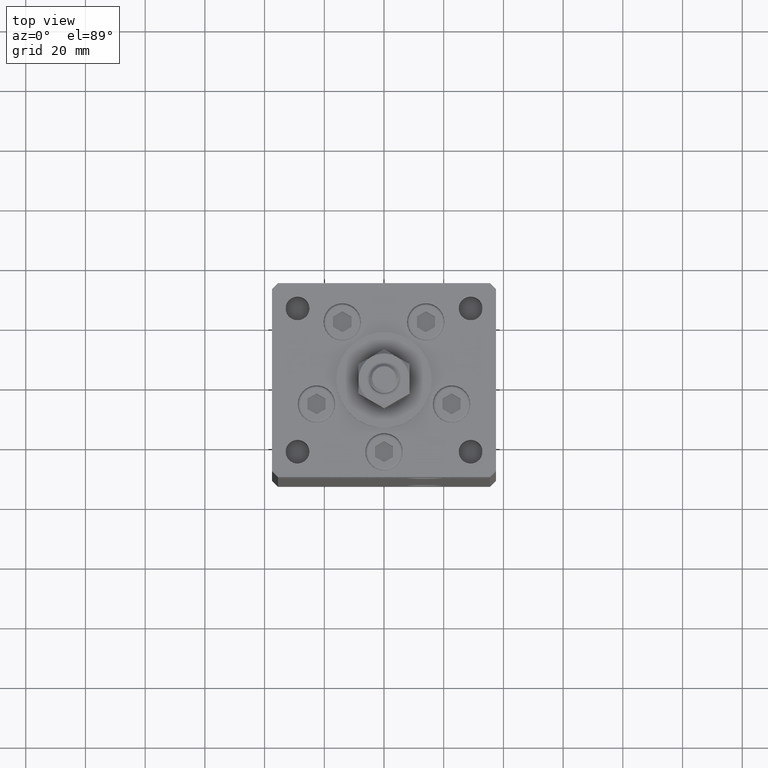
[diagram: clean part render]
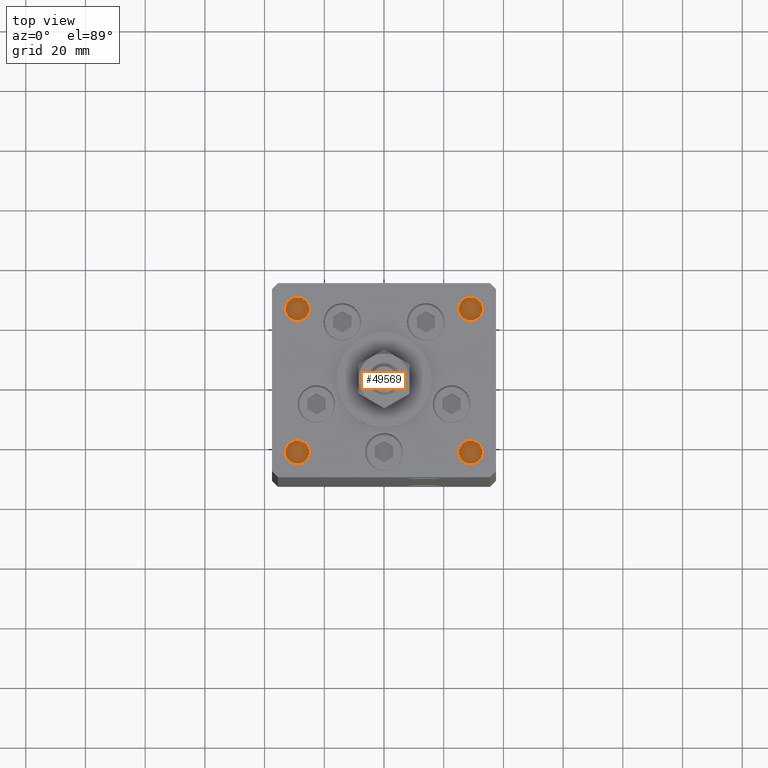
[diagram: same view with one face highlighted and labeled with its STEP entity id]
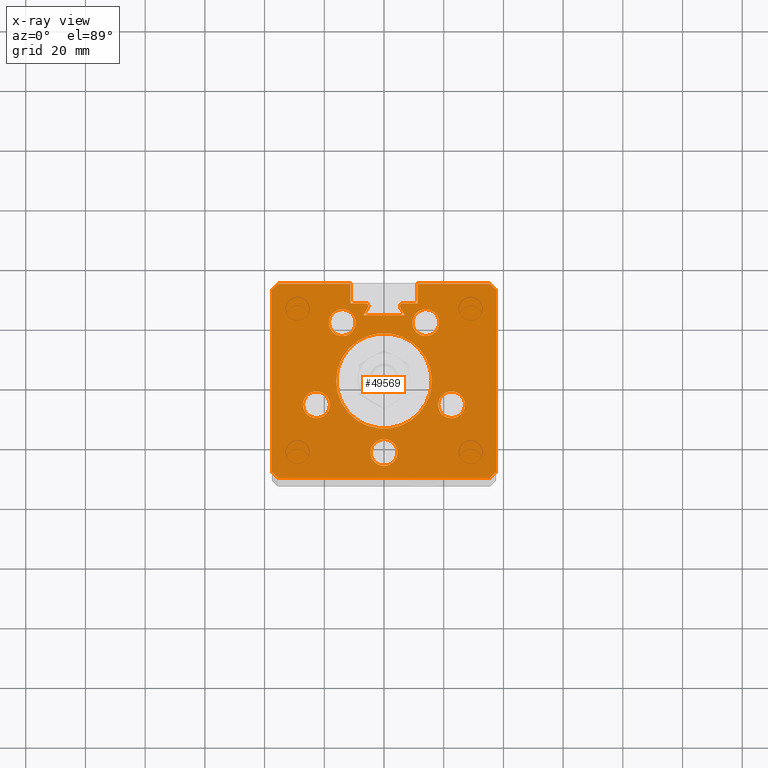
[diagram: x-ray of the same camera — body ghosted, the highlighted face saturated]
A machine part, top view. The second image highlights one B-rep face of the part: STEP entity #49569.
The next image is the same camera in x-ray: the body ghosted, the highlighted face saturated — about 0% of this face is hidden behind the body in this view.
In plain terms, the highlighted planar face has unit normal (0, 0, -1).
Its self-contained STEP definition (entity closure, byte-faithful):
#405 = VERTEX_POINT ( 'NONE', #25577 ) ;
#521 = EDGE_CURVE ( 'NONE', #20227, #28060, #35450, .T. ) ;
#607 = FACE_BOUND ( 'NONE', #19194, .T. ) ;
#1237 = ORIENTED_EDGE ( 'NONE', *, *, #10873, .T. ) ;
#1442 = DIRECTION ( 'NONE',  ( 0.000000000000000000, 0.000000000000000000, 1.000000000000000000 ) ) ;
#1730 = ORIENTED_EDGE ( 'NONE', *, *, #22017, .F. ) ;
#2103 = VERTEX_POINT ( 'NONE', #8087 ) ;
#2187 = EDGE_LOOP ( 'NONE', ( #38121, #13684, #14062, #14306, #53653, #31076, #34525, #52698, #13919, #39289, #41431, #50868, #1237, #29523, #7382, #40038, #49919, #7637, #42418 ) ) ;
#3345 = CARTESIAN_POINT ( 'NONE',  ( 35.50000000000000000, 32.49999999999999289, 156.0000000000000000 ) ) ;
#3605 = ORIENTED_EDGE ( 'NONE', *, *, #34980, .F. ) ;
#3732 = CARTESIAN_POINT ( 'NONE',  ( 6.876153656360466826, 21.99999999999986855, 156.0000000000000000 ) ) ;
#4161 = CARTESIAN_POINT ( 'NONE',  ( 0.000000000000000000, 0.000000000000000000, 156.0000000000000000 ) ) ;
#4205 = DIRECTION ( 'NONE',  ( 1.000000000000000000, 0.000000000000000000, 0.000000000000000000 ) ) ;
#4253 = LINE ( 'NONE', #45576, #10510 ) ;
#4308 = EDGE_CURVE ( 'NONE', #28270, #14749, #42780, .T. ) ;
#4363 = VECTOR ( 'NONE', #9335, 1000.000000000000000 ) ;
#4515 = DIRECTION ( 'NONE',  ( 0.000000000000000000, 1.000000000000000000, 0.000000000000000000 ) ) ;
#4566 = VERTEX_POINT ( 'NONE', #10098 ) ;
#4625 = VERTEX_POINT ( 'NONE', #31559 ) ;
#4676 = EDGE_LOOP ( 'NONE', ( #27812, #42208 ) ) ;
#5438 = VECTOR ( 'NONE', #10046, 1000.000000000000114 ) ;
#5548 = VECTOR ( 'NONE', #15099, 1000.000000000000000 ) ;
#5883 = VERTEX_POINT ( 'NONE', #37848 ) ;
#5970 = CARTESIAN_POINT ( 'NONE',  ( -6.183333333334001480, 25.99999999999999289, 156.0000000000000000 ) ) ;
#6012 = ORIENTED_EDGE ( 'NONE', *, *, #8038, .F. ) ;
#6140 = DIRECTION ( 'NONE',  ( 1.000000000000000000, 0.000000000000000000, 0.000000000000000000 ) ) ;
#6361 = DIRECTION ( 'NONE',  ( 2.275047181608927644E-16, -1.000000000000000000, 0.000000000000000000 ) ) ;
#6410 = DIRECTION ( 'NONE',  ( 0.000000000000000000, 0.000000000000000000, 1.000000000000000000 ) ) ;
#6465 = CIRCLE ( 'NONE', #13414, 4.499999999999997335 ) ;
#6550 = EDGE_CURVE ( 'NONE', #21237, #15702, #15606, .T. ) ;
#6639 = DIRECTION ( 'NONE',  ( -2.275047181608927644E-16, -1.000000000000000000, 0.000000000000000000 ) ) ;
#6687 = CIRCLE ( 'NONE', #13631, 0.9333333333340008142 ) ;
#6856 = EDGE_CURVE ( 'NONE', #28060, #20227, #47800, .T. ) ;
#6929 = CARTESIAN_POINT ( 'NONE',  ( -11.25000000000000178, 32.49999999999999289, 156.0000000000000000 ) ) ;
#7203 = LINE ( 'NONE', #6929, #5548 ) ;
#7331 = VERTEX_POINT ( 'NONE', #52617 ) ;
#7382 = ORIENTED_EDGE ( 'NONE', *, *, #12641, .T. ) ;
#7637 = ORIENTED_EDGE ( 'NONE', *, *, #17140, .F. ) ;
#7780 = CARTESIAN_POINT ( 'NONE',  ( -27.12741699796952233, -8.000000000000000000, 156.0000000000000000 ) ) ;
#7887 = VECTOR ( 'NONE', #53082, 1000.000000000000000 ) ;
#8038 = EDGE_CURVE ( 'NONE', #9038, #23674, #44341, .T. ) ;
#8087 = CARTESIAN_POINT ( 'NONE',  ( -5.375042956467946276, 24.59999999999899245, 156.0000000000000000 ) ) ;
#8333 = DIRECTION ( 'NONE',  ( 1.000000000000000000, 0.000000000000000000, 0.000000000000000000 ) ) ;
#8800 = VECTOR ( 'NONE', #23344, 1000.000000000000114 ) ;
#8837 = DIRECTION ( 'NONE',  ( 0.000000000000000000, 0.000000000000000000, -1.000000000000000000 ) ) ;
#9038 = VERTEX_POINT ( 'NONE', #15810 ) ;
#9196 = DIRECTION ( 'NONE',  ( 1.000000000000000000, 0.000000000000000000, 0.000000000000000000 ) ) ;
#9335 = DIRECTION ( 'NONE',  ( -1.000000000000000000, 0.000000000000000000, 0.000000000000000000 ) ) ;
#9687 = EDGE_CURVE ( 'NONE', #14895, #27698, #31058, .T. ) ;
#9815 = VERTEX_POINT ( 'NONE', #49758 ) ;
#9966 = DIRECTION ( 'NONE',  ( -0.000000000000000000, -1.000000000000000000, 0.000000000000000000 ) ) ;
#10046 = DIRECTION ( 'NONE',  ( 0.7071067811865500152, -0.7071067811865451302, 0.000000000000000000 ) ) ;
#10098 = CARTESIAN_POINT ( 'NONE',  ( 6.183333333334001480, 25.99999999999999289, 156.0000000000000000 ) ) ;
#10301 = VECTOR ( 'NONE', #51677, 1000.000000000000000 ) ;
#10412 = CARTESIAN_POINT ( 'NONE',  ( -37.49999999999999289, -30.50000000000000000, 156.0000000000000000 ) ) ;
#10510 = VECTOR ( 'NONE', #4515, 1000.000000000000000 ) ;
#10747 = CARTESIAN_POINT ( 'NONE',  ( 22.62741699796951877, -8.000000000000000000, 156.0000000000000000 ) ) ;
#10873 = EDGE_CURVE ( 'NONE', #4625, #4566, #30000, .T. ) ;
#10998 = CARTESIAN_POINT ( 'NONE',  ( -14.68339468389911495, 8.477461873366664236, 156.0000000000000000 ) ) ;
#11099 = CARTESIAN_POINT ( 'NONE',  ( 14.68339468389911850, 8.477461873366667788, 156.0000000000000000 ) ) ;
#11217 = EDGE_LOOP ( 'NONE', ( #1730, #3605 ) ) ;
#11259 = CARTESIAN_POINT ( 'NONE',  ( -37.50000000000000711, 30.50000000000000000, 156.0000000000000000 ) ) ;
#11328 = EDGE_CURVE ( 'NONE', #33629, #30388, #4253, .T. ) ;
#11797 = VERTEX_POINT ( 'NONE', #17792 ) ;
#11856 = EDGE_CURVE ( 'NONE', #42561, #32181, #36556, .T. ) ;
#12407 = DIRECTION ( 'NONE',  ( 0.000000000000000000, 0.000000000000000000, 1.000000000000000000 ) ) ;
#12461 = DIRECTION ( 'NONE',  ( 0.000000000000000000, 0.000000000000000000, 1.000000000000000000 ) ) ;
#12602 = DIRECTION ( 'NONE',  ( -1.000000000000000000, 0.000000000000000000, -0.000000000000000000 ) ) ;
#12641 = EDGE_CURVE ( 'NONE', #53342, #21237, #36912, .T. ) ;
#13414 = AXIS2_PLACEMENT_3D ( 'NONE', #44335, #31835, #28561 ) ;
#13631 = AXIS2_PLACEMENT_3D ( 'NONE', #45526, #17273, #4205 ) ;
#13684 = ORIENTED_EDGE ( 'NONE', *, *, #11328, .T. ) ;
#13919 = ORIENTED_EDGE ( 'NONE', *, *, #49393, .F. ) ;
#14009 = ORIENTED_EDGE ( 'NONE', *, *, #19904, .F. ) ;
#14062 = ORIENTED_EDGE ( 'NONE', *, *, #25358, .F. ) ;
#14122 = CARTESIAN_POINT ( 'NONE',  ( 35.50000000000000000, 32.49999999999999289, 156.0000000000000000 ) ) ;
#14123 = LINE ( 'NONE', #38595, #42085 ) ;
#14215 = DIRECTION ( 'NONE',  ( 1.000000000000000000, 0.000000000000000000, 0.000000000000000000 ) ) ;
#14306 = ORIENTED_EDGE ( 'NONE', *, *, #30870, .T. ) ;
#14311 = CARTESIAN_POINT ( 'NONE',  ( 13.99106857963322170, 19.50000000000000000, 156.0000000000000000 ) ) ;
#14749 = VERTEX_POINT ( 'NONE', #3345 ) ;
#14755 = DIRECTION ( 'NONE',  ( -0.000000000000000000, 0.000000000000000000, 1.000000000000000000 ) ) ;
#14895 = VERTEX_POINT ( 'NONE', #35114 ) ;
#15099 = DIRECTION ( 'NONE',  ( 1.000000000000000000, 0.000000000000000000, 0.000000000000000000 ) ) ;
#15270 = DIRECTION ( 'NONE',  ( -0.000000000000000000, 0.000000000000000000, 1.000000000000000000 ) ) ;
#15606 = LINE ( 'NONE', #52812, #7887 ) ;
#15615 = LINE ( 'NONE', #10998, #32495 ) ;
#15702 = VERTEX_POINT ( 'NONE', #23975 ) ;
#15748 = CARTESIAN_POINT ( 'NONE',  ( 0.000000000000000000, -24.00000000000000000, 156.0000000000000000 ) ) ;
#15810 = CARTESIAN_POINT ( 'NONE',  ( -18.12741699796951877, -8.000000000000000000, 156.0000000000000000 ) ) ;
#16000 = AXIS2_PLACEMENT_3D ( 'NONE', #4161, #46273, #12602 ) ;
#16260 = CIRCLE ( 'NONE', #41432, 4.500000000000003553 ) ;
#16664 = VERTEX_POINT ( 'NONE', #48062 ) ;
#16963 = FACE_BOUND ( 'NONE', #34722, .T. ) ;
#17140 = EDGE_CURVE ( 'NONE', #26437, #2103, #47070, .T. ) ;
#17273 = DIRECTION ( 'NONE',  ( 0.000000000000000000, 0.000000000000000000, -1.000000000000000000 ) ) ;
#17332 = EDGE_CURVE ( 'NONE', #14749, #5883, #30155, .T. ) ;
#17377 = VERTEX_POINT ( 'NONE', #30701 ) ;
#17525 = CARTESIAN_POINT ( 'NONE',  ( -5.250000000000000000, 25.06666666666599141, 156.0000000000000000 ) ) ;
#17792 = CARTESIAN_POINT ( 'NONE',  ( 4.500000000000000000, -24.00000000000000000, 156.0000000000000000 ) ) ;
#17838 = CARTESIAN_POINT ( 'NONE',  ( 5.375042956467948052, 24.59999999999899245, 156.0000000000000000 ) ) ;
#18065 = DIRECTION ( 'NONE',  ( 1.000000000000000000, 0.000000000000000000, 0.000000000000000000 ) ) ;
#18134 = CARTESIAN_POINT ( 'NONE',  ( 11.25000000000000178, 0.000000000000000000, 156.0000000000000000 ) ) ;
#18374 = DIRECTION ( 'NONE',  ( 0.000000000000000000, 0.000000000000000000, 1.000000000000000000 ) ) ;
#18715 = VERTEX_POINT ( 'NONE', #22081 ) ;
#18755 = ORIENTED_EDGE ( 'NONE', *, *, #44861, .F. ) ;
#18756 = DIRECTION ( 'NONE',  ( -1.000000000000000000, 0.000000000000000000, 0.000000000000000000 ) ) ;
#19194 = EDGE_LOOP ( 'NONE', ( #49784, #50760 ) ) ;
#19314 = EDGE_CURVE ( 'NONE', #51914, #17377, #26495, .T. ) ;
#19379 = DIRECTION ( 'NONE',  ( 0.7071067811865474617, -0.7071067811865474617, 0.000000000000000000 ) ) ;
#19598 = VECTOR ( 'NONE', #9966, 1000.000000000000000 ) ;
#19904 = EDGE_CURVE ( 'NONE', #11797, #40069, #51490, .T. ) ;
#20131 = CARTESIAN_POINT ( 'NONE',  ( 35.49999999999999289, -32.50000000000000000, 156.0000000000000000 ) ) ;
#20227 = VERTEX_POINT ( 'NONE', #45487 ) ;
#20236 = DIRECTION ( 'NONE',  ( 0.4999999999999995559, 0.8660254037844389297, 0.000000000000000000 ) ) ;
#20689 = VERTEX_POINT ( 'NONE', #5970 ) ;
#20912 = AXIS2_PLACEMENT_3D ( 'NONE', #32044, #23899, #23628 ) ;
#21175 = DIRECTION ( 'NONE',  ( 0.000000000000000000, 0.000000000000000000, 1.000000000000000000 ) ) ;
#21237 = VERTEX_POINT ( 'NONE', #3732 ) ;
#21699 = EDGE_CURVE ( 'NONE', #40069, #11797, #29057, .T. ) ;
#21756 = ORIENTED_EDGE ( 'NONE', *, *, #6856, .F. ) ;
#21956 = AXIS2_PLACEMENT_3D ( 'NONE', #25950, #8837, #50659 ) ;
#22017 = EDGE_CURVE ( 'NONE', #18715, #405, #6465, .T. ) ;
#22081 = CARTESIAN_POINT ( 'NONE',  ( -9.491068579633225255, 19.50000000000000000, 156.0000000000000000 ) ) ;
#23093 = EDGE_CURVE ( 'NONE', #20689, #33629, #14123, .T. ) ;
#23271 = AXIS2_PLACEMENT_3D ( 'NONE', #10747, #18374, #39294 ) ;
#23344 = DIRECTION ( 'NONE',  ( 0.4999999999999996114, -0.8660254037844388186, 0.000000000000000000 ) ) ;
#23628 = DIRECTION ( 'NONE',  ( 1.000000000000000000, 0.000000000000000000, 0.000000000000000000 ) ) ;
#23674 = VERTEX_POINT ( 'NONE', #7780 ) ;
#23804 = DIRECTION ( 'NONE',  ( 1.000000000000000000, 0.000000000000000000, 0.000000000000000000 ) ) ;
#23899 = DIRECTION ( 'NONE',  ( 0.000000000000000000, 0.000000000000000000, 1.000000000000000000 ) ) ;
#23971 = CARTESIAN_POINT ( 'NONE',  ( 0.000000000000000000, 0.000000000000000000, 156.0000000000000000 ) ) ;
#23975 = CARTESIAN_POINT ( 'NONE',  ( -6.876153656360466826, 21.99999999999986855, 156.0000000000000000 ) ) ;
#23983 = VECTOR ( 'NONE', #34847, 1000.000000000000114 ) ;
#24051 = CARTESIAN_POINT ( 'NONE',  ( 37.50000000000000711, 30.50000000000000000, 156.0000000000000000 ) ) ;
#24848 = CARTESIAN_POINT ( 'NONE',  ( 18.12741699796951877, -8.000000000000000000, 156.0000000000000000 ) ) ;
#25141 = DIRECTION ( 'NONE',  ( 1.000000000000000000, 0.000000000000000000, 0.000000000000000000 ) ) ;
#25358 = EDGE_CURVE ( 'NONE', #42493, #30388, #7203, .T. ) ;
#25373 = FACE_BOUND ( 'NONE', #26704, .T. ) ;
#25577 = CARTESIAN_POINT ( 'NONE',  ( -18.49106857963321815, 19.50000000000000000, 156.0000000000000000 ) ) ;
#25919 = EDGE_LOOP ( 'NONE', ( #21756, #31856 ) ) ;
#25950 = CARTESIAN_POINT ( 'NONE',  ( -6.183333333334001480, 25.06666666666599141, 156.0000000000000000 ) ) ;
#26150 = CARTESIAN_POINT ( 'NONE',  ( -35.50000000000000000, 32.49999999999999289, 156.0000000000000000 ) ) ;
#26437 = VERTEX_POINT ( 'NONE', #17525 ) ;
#26495 = LINE ( 'NONE', #11259, #32435 ) ;
#26704 = EDGE_LOOP ( 'NONE', ( #14009, #35994 ) ) ;
#27698 = VERTEX_POINT ( 'NONE', #20131 ) ;
#27716 = DIRECTION ( 'NONE',  ( 0.000000000000000000, 0.000000000000000000, -1.000000000000000000 ) ) ;
#27812 = ORIENTED_EDGE ( 'NONE', *, *, #11856, .F. ) ;
#28060 = VERTEX_POINT ( 'NONE', #44253 ) ;
#28270 = VERTEX_POINT ( 'NONE', #42575 ) ;
#28561 = DIRECTION ( 'NONE',  ( 1.000000000000000000, 0.000000000000000000, 0.000000000000000000 ) ) ;
#28756 = AXIS2_PLACEMENT_3D ( 'NONE', #46305, #1442, #25141 ) ;
#28917 = FACE_OUTER_BOUND ( 'NONE', #2187, .T. ) ;
#29057 = CIRCLE ( 'NONE', #52457, 4.500000000000000000 ) ;
#29084 = EDGE_CURVE ( 'NONE', #28270, #4625, #29349, .T. ) ;
#29349 = LINE ( 'NONE', #18134, #19598 ) ;
#29523 = ORIENTED_EDGE ( 'NONE', *, *, #43815, .F. ) ;
#29709 = PLANE ( 'NONE',  #16000 ) ;
#30000 = LINE ( 'NONE', #37364, #4363 ) ;
#30155 = LINE ( 'NONE', #14122, #5438 ) ;
#30388 = VERTEX_POINT ( 'NONE', #40535 ) ;
#30701 = CARTESIAN_POINT ( 'NONE',  ( -37.49999999999999289, -30.50000000000000000, 156.0000000000000000 ) ) ;
#30820 = CARTESIAN_POINT ( 'NONE',  ( -11.25000000000000178, 32.49999999999999289, 156.0000000000000000 ) ) ;
#30822 = DIRECTION ( 'NONE',  ( 1.000000000000000000, 0.000000000000000000, 0.000000000000000000 ) ) ;
#30870 = EDGE_CURVE ( 'NONE', #42493, #51914, #49075, .T. ) ;
#31025 = CIRCLE ( 'NONE', #34511, 4.499999999999997335 ) ;
#31058 = LINE ( 'NONE', #43821, #46880 ) ;
#31076 = ORIENTED_EDGE ( 'NONE', *, *, #45636, .T. ) ;
#31559 = CARTESIAN_POINT ( 'NONE',  ( 11.25000000000000178, 25.99999999999999289, 156.0000000000000000 ) ) ;
#31835 = DIRECTION ( 'NONE',  ( 0.000000000000000000, 0.000000000000000000, 1.000000000000000000 ) ) ;
#31856 = ORIENTED_EDGE ( 'NONE', *, *, #521, .F. ) ;
#32044 = CARTESIAN_POINT ( 'NONE',  ( -22.62741699796951877, -8.000000000000000000, 156.0000000000000000 ) ) ;
#32181 = VERTEX_POINT ( 'NONE', #24848 ) ;
#32342 = AXIS2_PLACEMENT_3D ( 'NONE', #33934, #21175, #9196 ) ;
#32435 = VECTOR ( 'NONE', #6361, 1000.000000000000000 ) ;
#32495 = VECTOR ( 'NONE', #20236, 1000.000000000000000 ) ;
#32756 = CARTESIAN_POINT ( 'NONE',  ( -13.99106857963322170, 19.50000000000000000, 156.0000000000000000 ) ) ;
#32847 = AXIS2_PLACEMENT_3D ( 'NONE', #51964, #14755, #14215 ) ;
#33629 = VERTEX_POINT ( 'NONE', #49986 ) ;
#33934 = CARTESIAN_POINT ( 'NONE',  ( -22.62741699796951877, -8.000000000000000000, 156.0000000000000000 ) ) ;
#33961 = EDGE_CURVE ( 'NONE', #7331, #9815, #16260, .T. ) ;
#34048 = FACE_BOUND ( 'NONE', #11217, .T. ) ;
#34224 = EDGE_CURVE ( 'NONE', #20689, #26437, #6687, .T. ) ;
#34511 = AXIS2_PLACEMENT_3D ( 'NONE', #32756, #44453, #23804 ) ;
#34525 = ORIENTED_EDGE ( 'NONE', *, *, #37990, .T. ) ;
#34722 = EDGE_LOOP ( 'NONE', ( #6012, #18755 ) ) ;
#34847 = DIRECTION ( 'NONE',  ( -0.7071067811865500152, -0.7071067811865451302, 0.000000000000000000 ) ) ;
#34980 = EDGE_CURVE ( 'NONE', #405, #18715, #31025, .T. ) ;
#35114 = CARTESIAN_POINT ( 'NONE',  ( 37.49999999999999289, -30.50000000000000000, 156.0000000000000000 ) ) ;
#35117 = DIRECTION ( 'NONE',  ( 1.000000000000000000, 0.000000000000000000, 0.000000000000000000 ) ) ;
#35442 = DIRECTION ( 'NONE',  ( 0.000000000000000000, 0.000000000000000000, 1.000000000000000000 ) ) ;
#35450 = CIRCLE ( 'NONE', #32847, 16.00000000000000000 ) ;
#35605 = VECTOR ( 'NONE', #18065, 1000.000000000000000 ) ;
#35789 = CIRCLE ( 'NONE', #39284, 4.500000000000003553 ) ;
#35832 = VECTOR ( 'NONE', #19379, 1000.000000000000114 ) ;
#35906 = VECTOR ( 'NONE', #6639, 1000.000000000000000 ) ;
#35944 = DIRECTION ( 'NONE',  ( -0.7071067811865474617, -0.7071067811865474617, 0.000000000000000000 ) ) ;
#35994 = ORIENTED_EDGE ( 'NONE', *, *, #21699, .F. ) ;
#36556 = CIRCLE ( 'NONE', #28756, 4.500000000000000888 ) ;
#36784 = AXIS2_PLACEMENT_3D ( 'NONE', #15748, #12461, #53225 ) ;
#36912 = LINE ( 'NONE', #11099, #8800 ) ;
#37149 = CARTESIAN_POINT ( 'NONE',  ( 13.99106857963322170, 19.50000000000000000, 156.0000000000000000 ) ) ;
#37364 = CARTESIAN_POINT ( 'NONE',  ( 0.000000000000000000, 25.99999999999999289, 156.0000000000000000 ) ) ;
#37556 = CARTESIAN_POINT ( 'NONE',  ( -4.500000000000000000, -24.00000000000000000, 156.0000000000000000 ) ) ;
#37848 = CARTESIAN_POINT ( 'NONE',  ( 37.50000000000000711, 30.50000000000000000, 156.0000000000000000 ) ) ;
#37871 = FACE_BOUND ( 'NONE', #4676, .T. ) ;
#37990 = EDGE_CURVE ( 'NONE', #16664, #27698, #48148, .T. ) ;
#38121 = ORIENTED_EDGE ( 'NONE', *, *, #23093, .T. ) ;
#38595 = CARTESIAN_POINT ( 'NONE',  ( 0.000000000000000000, 25.99999999999999289, 156.0000000000000000 ) ) ;
#39284 = AXIS2_PLACEMENT_3D ( 'NONE', #37149, #12407, #8333 ) ;
#39289 = ORIENTED_EDGE ( 'NONE', *, *, #17332, .F. ) ;
#39294 = DIRECTION ( 'NONE',  ( 1.000000000000000000, 0.000000000000000000, 0.000000000000000000 ) ) ;
#39527 = EDGE_CURVE ( 'NONE', #32181, #42561, #45061, .T. ) ;
#39675 = CARTESIAN_POINT ( 'NONE',  ( -37.50000000000000711, 30.50000000000000000, 156.0000000000000000 ) ) ;
#40038 = ORIENTED_EDGE ( 'NONE', *, *, #6550, .T. ) ;
#40069 = VERTEX_POINT ( 'NONE', #37556 ) ;
#40535 = CARTESIAN_POINT ( 'NONE',  ( -11.25000000000000178, 32.49999999999999289, 156.0000000000000000 ) ) ;
#40887 = LINE ( 'NONE', #24051, #35906 ) ;
#41431 = ORIENTED_EDGE ( 'NONE', *, *, #4308, .F. ) ;
#41432 = AXIS2_PLACEMENT_3D ( 'NONE', #14311, #6410, #6140 ) ;
#41727 = AXIS2_PLACEMENT_3D ( 'NONE', #23971, #15270, #35117 ) ;
#41808 = CARTESIAN_POINT ( 'NONE',  ( 27.12741699796952233, -8.000000000000000000, 156.0000000000000000 ) ) ;
#41835 = CIRCLE ( 'NONE', #47014, 0.9333333333340008142 ) ;
#42085 = VECTOR ( 'NONE', #18756, 1000.000000000000000 ) ;
#42208 = ORIENTED_EDGE ( 'NONE', *, *, #39527, .F. ) ;
#42418 = ORIENTED_EDGE ( 'NONE', *, *, #34224, .F. ) ;
#42493 = VERTEX_POINT ( 'NONE', #48880 ) ;
#42561 = VERTEX_POINT ( 'NONE', #41808 ) ;
#42575 = CARTESIAN_POINT ( 'NONE',  ( 11.24999999999999467, 32.49999999999999289, 156.0000000000000000 ) ) ;
#42780 = LINE ( 'NONE', #30820, #35605 ) ;
#43815 = EDGE_CURVE ( 'NONE', #53342, #4566, #41835, .T. ) ;
#43821 = CARTESIAN_POINT ( 'NONE',  ( 37.49999999999999289, -30.50000000000000000, 156.0000000000000000 ) ) ;
#44187 = EDGE_CURVE ( 'NONE', #9815, #7331, #35789, .T. ) ;
#44253 = CARTESIAN_POINT ( 'NONE',  ( -16.00000000000000000, 0.000000000000000000, 156.0000000000000000 ) ) ;
#44290 = CARTESIAN_POINT ( 'NONE',  ( 6.183333333334001480, 25.06666666666599141, 156.0000000000000000 ) ) ;
#44335 = CARTESIAN_POINT ( 'NONE',  ( -13.99106857963322170, 19.50000000000000000, 156.0000000000000000 ) ) ;
#44341 = CIRCLE ( 'NONE', #20912, 4.500000000000000888 ) ;
#44453 = DIRECTION ( 'NONE',  ( 0.000000000000000000, 0.000000000000000000, 1.000000000000000000 ) ) ;
#44861 = EDGE_CURVE ( 'NONE', #23674, #9038, #51383, .T. ) ;
#45061 = CIRCLE ( 'NONE', #23271, 4.500000000000000888 ) ;
#45487 = CARTESIAN_POINT ( 'NONE',  ( 16.00000000000000000, 1.959434878635765131E-15, 156.0000000000000000 ) ) ;
#45526 = CARTESIAN_POINT ( 'NONE',  ( -6.183333333334001480, 25.06666666666599141, 156.0000000000000000 ) ) ;
#45576 = CARTESIAN_POINT ( 'NONE',  ( -11.25000000000000178, 0.000000000000000000, 156.0000000000000000 ) ) ;
#45636 = EDGE_CURVE ( 'NONE', #17377, #16664, #47636, .T. ) ;
#46273 = DIRECTION ( 'NONE',  ( 0.000000000000000000, 0.000000000000000000, -1.000000000000000000 ) ) ;
#46305 = CARTESIAN_POINT ( 'NONE',  ( 22.62741699796951877, -8.000000000000000000, 156.0000000000000000 ) ) ;
#46880 = VECTOR ( 'NONE', #35944, 1000.000000000000114 ) ;
#47014 = AXIS2_PLACEMENT_3D ( 'NONE', #44290, #27716, #48886 ) ;
#47070 = CIRCLE ( 'NONE', #21956, 0.9333333333340008142 ) ;
#47636 = LINE ( 'NONE', #10412, #35832 ) ;
#47658 = CARTESIAN_POINT ( 'NONE',  ( 0.000000000000000000, -24.00000000000000000, 156.0000000000000000 ) ) ;
#47800 = CIRCLE ( 'NONE', #41727, 16.00000000000000000 ) ;
#47878 = CARTESIAN_POINT ( 'NONE',  ( -35.49999999999999289, -32.50000000000000000, 156.0000000000000000 ) ) ;
#48062 = CARTESIAN_POINT ( 'NONE',  ( -35.49999999999999289, -32.50000000000000000, 156.0000000000000000 ) ) ;
#48148 = LINE ( 'NONE', #47878, #10301 ) ;
#48880 = CARTESIAN_POINT ( 'NONE',  ( -35.50000000000000000, 32.49999999999999289, 156.0000000000000000 ) ) ;
#48886 = DIRECTION ( 'NONE',  ( 1.000000000000000000, 0.000000000000000000, 0.000000000000000000 ) ) ;
#49075 = LINE ( 'NONE', #26150, #23983 ) ;
#49393 = EDGE_CURVE ( 'NONE', #5883, #14895, #40887, .T. ) ;
#49447 = EDGE_CURVE ( 'NONE', #15702, #2103, #15615, .T. ) ;
#49569 = ADVANCED_FACE ( 'NONE', ( #16963, #25373, #37871, #607, #34048, #28917, #53631 ), #29709, .F. ) ;
#49758 = CARTESIAN_POINT ( 'NONE',  ( 9.491068579633218150, 19.50000000000000000, 156.0000000000000000 ) ) ;
#49784 = ORIENTED_EDGE ( 'NONE', *, *, #33961, .F. ) ;
#49919 = ORIENTED_EDGE ( 'NONE', *, *, #49447, .T. ) ;
#49986 = CARTESIAN_POINT ( 'NONE',  ( -11.25000000000000178, 25.99999999999999289, 156.0000000000000000 ) ) ;
#50659 = DIRECTION ( 'NONE',  ( 1.000000000000000000, 0.000000000000000000, 0.000000000000000000 ) ) ;
#50760 = ORIENTED_EDGE ( 'NONE', *, *, #44187, .F. ) ;
#50868 = ORIENTED_EDGE ( 'NONE', *, *, #29084, .T. ) ;
#51383 = CIRCLE ( 'NONE', #32342, 4.500000000000000888 ) ;
#51490 = CIRCLE ( 'NONE', #36784, 4.500000000000000000 ) ;
#51677 = DIRECTION ( 'NONE',  ( 1.000000000000000000, 0.000000000000000000, 0.000000000000000000 ) ) ;
#51914 = VERTEX_POINT ( 'NONE', #39675 ) ;
#51964 = CARTESIAN_POINT ( 'NONE',  ( 0.000000000000000000, 0.000000000000000000, 156.0000000000000000 ) ) ;
#52457 = AXIS2_PLACEMENT_3D ( 'NONE', #47658, #35442, #30822 ) ;
#52617 = CARTESIAN_POINT ( 'NONE',  ( 18.49106857963322526, 19.50000000000000000, 156.0000000000000000 ) ) ;
#52698 = ORIENTED_EDGE ( 'NONE', *, *, #9687, .F. ) ;
#52812 = CARTESIAN_POINT ( 'NONE',  ( 0.000000000000000000, 21.99999999999986855, 156.0000000000000000 ) ) ;
#53082 = DIRECTION ( 'NONE',  ( -1.000000000000000000, 0.000000000000000000, 0.000000000000000000 ) ) ;
#53225 = DIRECTION ( 'NONE',  ( 1.000000000000000000, 0.000000000000000000, 0.000000000000000000 ) ) ;
#53342 = VERTEX_POINT ( 'NONE', #17838 ) ;
#53631 = FACE_BOUND ( 'NONE', #25919, .T. ) ;
#53653 = ORIENTED_EDGE ( 'NONE', *, *, #19314, .T. ) ;